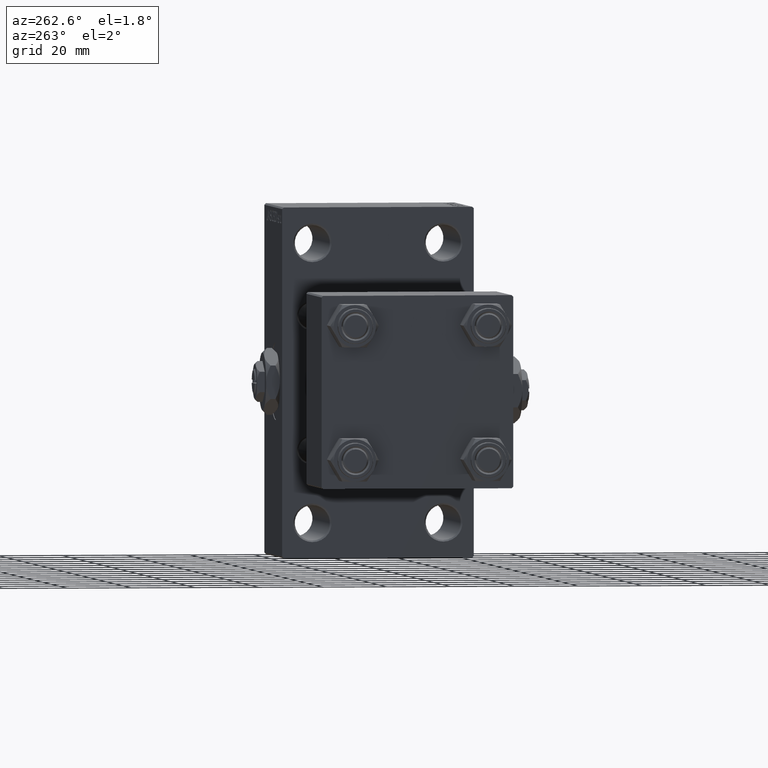
[diagram: clean part render]
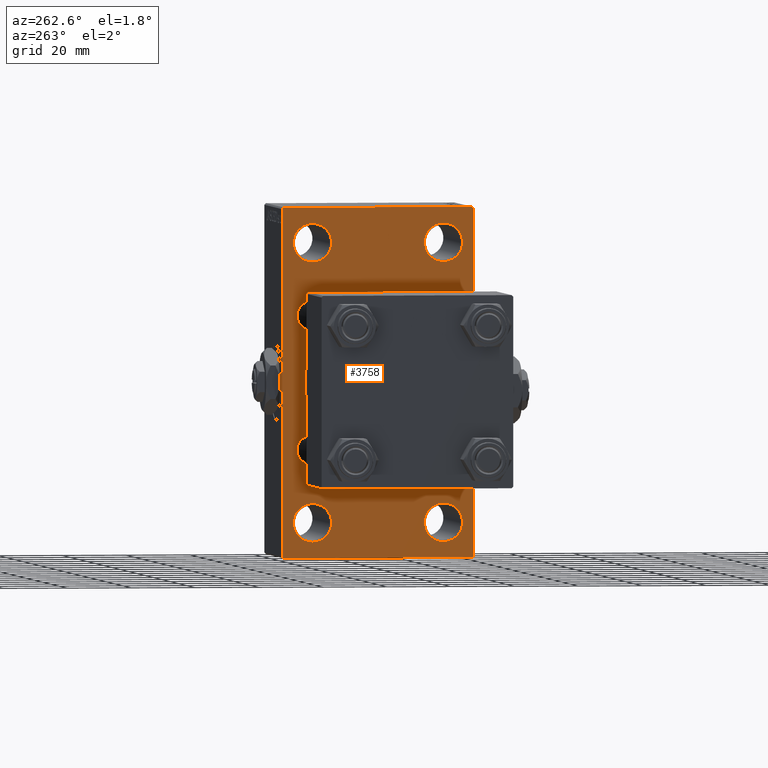
[diagram: same view with one face highlighted and labeled with its STEP entity id]
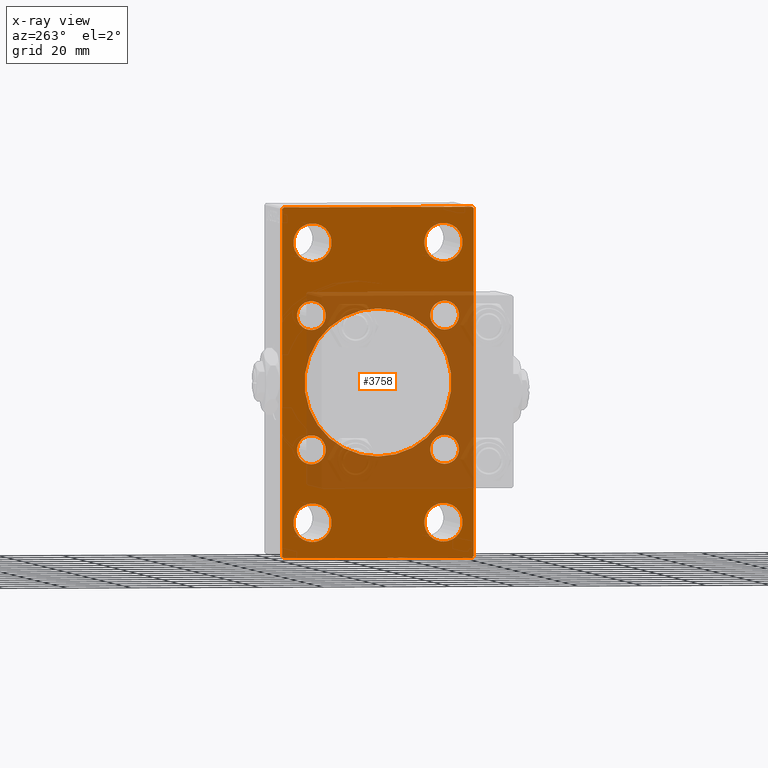
[diagram: x-ray of the same camera — body ghosted, the highlighted face saturated]
A machine part, auxiliary view. The second image highlights one B-rep face of the part: STEP entity #3758.
The next image is the same camera in x-ray: the body ghosted, the highlighted face saturated — about 32% of this face is hidden behind the body in this view.
In plain terms, the highlighted planar face has unit normal (-1, 0, 0).
Its self-contained STEP definition (entity closure, byte-faithful):
#215 = CARTESIAN_POINT ( 'NONE',  ( 95.00000000000000000, -20.50000000000000000, -49.49999999999989342 ) ) ;
#335 = CARTESIAN_POINT ( 'NONE',  ( 95.00000000000000000, 42.00000000000082423, 41.99999999999849365 ) ) ;
#457 = EDGE_LOOP ( 'NONE', ( #11905, #29011 ) ) ;
#688 = CARTESIAN_POINT ( 'NONE',  ( 95.00000000000000000, -20.50000000000000000, -43.50000000000000000 ) ) ;
#700 = VECTOR ( 'NONE', #42082, 1000.000000000000000 ) ;
#788 = CIRCLE ( 'NONE', #26846, 5.999999999999894307 ) ;
#794 = DIRECTION ( 'NONE',  ( 1.000000000000000000, -0.000000000000000000, 0.000000000000000000 ) ) ;
#814 = DIRECTION ( 'NONE',  ( 1.000000000000000000, -0.000000000000000000, 0.000000000000000000 ) ) ;
#875 = CARTESIAN_POINT ( 'NONE',  ( 95.00000000000000000, -2.602085213965210642E-15, 0.000000000000000000 ) ) ;
#1116 = DIRECTION ( 'NONE',  ( 0.000000000000000000, 0.000000000000000000, -1.000000000000000000 ) ) ;
#1276 = CIRCLE ( 'NONE', #11545, 4.500000000000007105 ) ;
#1546 = EDGE_CURVE ( 'NONE', #8600, #10422, #4640, .T. ) ;
#1594 = DIRECTION ( 'NONE',  ( 0.000000000000000000, 0.000000000000000000, 1.000000000000000000 ) ) ;
#1781 = EDGE_CURVE ( 'NONE', #31802, #11388, #19612, .T. ) ;
#2641 = CIRCLE ( 'NONE', #14464, 4.500000000000007105 ) ;
#2984 = ORIENTED_EDGE ( 'NONE', *, *, #29493, .T. ) ;
#3758 = ADVANCED_FACE ( 'NONE', ( #16759, #8852, #23913, #39041, #5113, #35330, #16516, #32357, #14022, #17948 ), #36776, .T. ) ;
#3879 = ORIENTED_EDGE ( 'NONE', *, *, #10965, .T. ) ;
#3888 = DIRECTION ( 'NONE',  ( 0.000000000000000000, 0.000000000000000000, 1.000000000000000000 ) ) ;
#3954 = DIRECTION ( 'NONE',  ( 0.000000000000000000, 0.000000000000000000, 1.000000000000000000 ) ) ;
#4444 = EDGE_CURVE ( 'NONE', #23435, #39509, #788, .T. ) ;
#4494 = DIRECTION ( 'NONE',  ( 0.000000000000000000, 0.000000000000000000, -1.000000000000000000 ) ) ;
#4640 = CIRCLE ( 'NONE', #14904, 23.00000000000000000 ) ;
#4715 = AXIS2_PLACEMENT_3D ( 'NONE', #9343, #6353, #47962 ) ;
#4761 = LINE ( 'NONE', #30490, #15531 ) ;
#4824 = DIRECTION ( 'NONE',  ( 1.000000000000000000, 0.000000000000000000, 0.000000000000000000 ) ) ;
#4983 = DIRECTION ( 'NONE',  ( 0.000000000000000000, 0.000000000000000000, 1.000000000000000000 ) ) ;
#5113 = FACE_BOUND ( 'NONE', #36625, .T. ) ;
#5217 = CIRCLE ( 'NONE', #20991, 23.00000000000000000 ) ;
#5296 = CARTESIAN_POINT ( 'NONE',  ( 95.00000000000000000, -20.84999999999999076, -20.85000000000000497 ) ) ;
#5454 = AXIS2_PLACEMENT_3D ( 'NONE', #23181, #45777, #22691 ) ;
#5468 = DIRECTION ( 'NONE',  ( 1.000000000000000000, -0.000000000000000000, 0.000000000000000000 ) ) ;
#5643 = EDGE_CURVE ( 'NONE', #30629, #31057, #38752, .T. ) ;
#5721 = ORIENTED_EDGE ( 'NONE', *, *, #33546, .T. ) ;
#5760 = CARTESIAN_POINT ( 'NONE',  ( 95.00000000000000000, 20.84999999999999787, 16.34999999999999432 ) ) ;
#5849 = AXIS2_PLACEMENT_3D ( 'NONE', #11143, #10423, #25497 ) ;
#5923 = EDGE_CURVE ( 'NONE', #34494, #33737, #17415, .T. ) ;
#6088 = AXIS2_PLACEMENT_3D ( 'NONE', #25727, #33888, #3954 ) ;
#6322 = ORIENTED_EDGE ( 'NONE', *, *, #30938, .T. ) ;
#6353 = DIRECTION ( 'NONE',  ( -1.000000000000000000, 0.000000000000000000, -0.000000000000000000 ) ) ;
#6832 = EDGE_CURVE ( 'NONE', #11388, #31802, #45933, .T. ) ;
#6892 = EDGE_CURVE ( 'NONE', #22696, #29142, #21379, .T. ) ;
#6956 = AXIS2_PLACEMENT_3D ( 'NONE', #32823, #47947, #40720 ) ;
#7001 = EDGE_LOOP ( 'NONE', ( #16142, #31795 ) ) ;
#7137 = CARTESIAN_POINT ( 'NONE',  ( 95.00000000000000000, -20.50000000000000000, 43.50000000000000000 ) ) ;
#7164 = EDGE_LOOP ( 'NONE', ( #14504, #3879, #41515, #18120, #25220, #23652, #8882, #22784 ) ) ;
#7469 = EDGE_LOOP ( 'NONE', ( #45259, #12807 ) ) ;
#7511 = CARTESIAN_POINT ( 'NONE',  ( 95.00000000000000000, -20.84999999999999076, 25.35000000000001208 ) ) ;
#7616 = DIRECTION ( 'NONE',  ( 1.000000000000000000, -0.000000000000000000, 0.000000000000000000 ) ) ;
#7835 = CARTESIAN_POINT ( 'NONE',  ( 95.00000000000000000, 20.84999999999999787, 20.85000000000000142 ) ) ;
#7957 = CARTESIAN_POINT ( 'NONE',  ( 95.00000000000000000, -2.602085213965210642E-15, 23.00000000000000000 ) ) ;
#8459 = DIRECTION ( 'NONE',  ( 0.000000000000000000, 0.000000000000000000, -1.000000000000000000 ) ) ;
#8600 = VERTEX_POINT ( 'NONE', #7957 ) ;
#8672 = CARTESIAN_POINT ( 'NONE',  ( 95.00000000000000000, 29.99999999999999645, 54.49999999999999289 ) ) ;
#8852 = FACE_BOUND ( 'NONE', #43226, .T. ) ;
#8882 = ORIENTED_EDGE ( 'NONE', *, *, #48315, .T. ) ;
#9164 = CARTESIAN_POINT ( 'NONE',  ( 95.00000000000000000, -30.00000000000000000, 53.99999999999997158 ) ) ;
#9343 = CARTESIAN_POINT ( 'NONE',  ( 95.00000000000000000, 0.000000000000000000, 0.000000000000000000 ) ) ;
#9578 = DIRECTION ( 'NONE',  ( 0.000000000000000000, -1.000000000000000000, -1.156482317317871478E-16 ) ) ;
#9611 = EDGE_LOOP ( 'NONE', ( #23106, #30159 ) ) ;
#9704 = EDGE_CURVE ( 'NONE', #30629, #25193, #26516, .T. ) ;
#10079 = VERTEX_POINT ( 'NONE', #14847 ) ;
#10117 = ORIENTED_EDGE ( 'NONE', *, *, #30815, .T. ) ;
#10379 = EDGE_CURVE ( 'NONE', #39761, #26212, #30109, .T. ) ;
#10422 = VERTEX_POINT ( 'NONE', #17404 ) ;
#10423 = DIRECTION ( 'NONE',  ( 1.000000000000000000, -0.000000000000000000, 0.000000000000000000 ) ) ;
#10608 = LINE ( 'NONE', #25687, #33302 ) ;
#10965 = EDGE_CURVE ( 'NONE', #33835, #25193, #10608, .T. ) ;
#11143 = CARTESIAN_POINT ( 'NONE',  ( 95.00000000000000000, -20.50000000000000000, 43.50000000000000000 ) ) ;
#11388 = VERTEX_POINT ( 'NONE', #34774 ) ;
#11545 = AXIS2_PLACEMENT_3D ( 'NONE', #35937, #32214, #4983 ) ;
#11551 = CARTESIAN_POINT ( 'NONE',  ( 95.00000000000000000, -20.50000000000000000, 49.49999999999989342 ) ) ;
#11905 = ORIENTED_EDGE ( 'NONE', *, *, #1546, .T. ) ;
#11911 = AXIS2_PLACEMENT_3D ( 'NONE', #24001, #5468, #46099 ) ;
#12059 = CARTESIAN_POINT ( 'NONE',  ( 95.00000000000000000, 29.99999999999999645, 54.49999999999999289 ) ) ;
#12807 = ORIENTED_EDGE ( 'NONE', *, *, #5923, .T. ) ;
#13063 = DIRECTION ( 'NONE',  ( 1.000000000000000000, -0.000000000000000000, 0.000000000000000000 ) ) ;
#13324 = ORIENTED_EDGE ( 'NONE', *, *, #4444, .T. ) ;
#13388 = ORIENTED_EDGE ( 'NONE', *, *, #46734, .T. ) ;
#13469 = DIRECTION ( 'NONE',  ( 1.000000000000000000, -0.000000000000000000, 0.000000000000000000 ) ) ;
#13591 = VERTEX_POINT ( 'NONE', #40278 ) ;
#14022 = FACE_BOUND ( 'NONE', #457, .T. ) ;
#14464 = AXIS2_PLACEMENT_3D ( 'NONE', #34701, #794, #23027 ) ;
#14504 = ORIENTED_EDGE ( 'NONE', *, *, #40711, .T. ) ;
#14847 = CARTESIAN_POINT ( 'NONE',  ( 95.00000000000000000, 29.49999999999999645, -54.49999999999999289 ) ) ;
#14904 = AXIS2_PLACEMENT_3D ( 'NONE', #875, #4824, #1116 ) ;
#15531 = VECTOR ( 'NONE', #45628, 1000.000000000000114 ) ;
#16142 = ORIENTED_EDGE ( 'NONE', *, *, #6892, .T. ) ;
#16516 = FACE_BOUND ( 'NONE', #9611, .T. ) ;
#16759 = FACE_BOUND ( 'NONE', #21893, .T. ) ;
#17197 = VECTOR ( 'NONE', #30130, 1000.000000000000000 ) ;
#17311 = CIRCLE ( 'NONE', #5454, 5.999999999999894307 ) ;
#17404 = CARTESIAN_POINT ( 'NONE',  ( 95.00000000000000000, 2.146024240737012665E-16, -23.00000000000000000 ) ) ;
#17415 = CIRCLE ( 'NONE', #37939, 4.500000000000007105 ) ;
#17703 = CARTESIAN_POINT ( 'NONE',  ( 95.00000000000000000, 29.50000000000002132, 54.49999999999999289 ) ) ;
#17924 = AXIS2_PLACEMENT_3D ( 'NONE', #7137, #46018, #18738 ) ;
#17948 = FACE_OUTER_BOUND ( 'NONE', #7164, .T. ) ;
#18120 = ORIENTED_EDGE ( 'NONE', *, *, #5643, .T. ) ;
#18134 = CIRCLE ( 'NONE', #37130, 4.500000000000007105 ) ;
#18508 = EDGE_CURVE ( 'NONE', #36318, #36826, #2641, .T. ) ;
#18738 = DIRECTION ( 'NONE',  ( 0.000000000000000000, 0.000000000000000000, 1.000000000000000000 ) ) ;
#19396 = CIRCLE ( 'NONE', #47144, 4.500000000000007105 ) ;
#19612 = CIRCLE ( 'NONE', #37036, 4.500000000000007105 ) ;
#19629 = VERTEX_POINT ( 'NONE', #30988 ) ;
#20351 = CARTESIAN_POINT ( 'NONE',  ( 95.00000000000000000, 20.84999999999999787, 25.35000000000000853 ) ) ;
#20991 = AXIS2_PLACEMENT_3D ( 'NONE', #23020, #38152, #4494 ) ;
#21053 = EDGE_CURVE ( 'NONE', #40647, #37556, #22411, .T. ) ;
#21152 = DIRECTION ( 'NONE',  ( 1.000000000000000000, -0.000000000000000000, 0.000000000000000000 ) ) ;
#21379 = CIRCLE ( 'NONE', #11911, 5.999999999999894307 ) ;
#21400 = DIRECTION ( 'NONE',  ( 0.000000000000000000, 0.000000000000000000, 1.000000000000000000 ) ) ;
#21815 = CARTESIAN_POINT ( 'NONE',  ( 95.00000000000000000, -29.50000000000000355, -54.50000000000000000 ) ) ;
#21893 = EDGE_LOOP ( 'NONE', ( #43779, #10117 ) ) ;
#22411 = CIRCLE ( 'NONE', #5849, 5.999999999999894307 ) ;
#22655 = CARTESIAN_POINT ( 'NONE',  ( 95.00000000000000000, -20.84999999999999076, -16.34999999999999787 ) ) ;
#22691 = DIRECTION ( 'NONE',  ( 0.000000000000000000, 0.000000000000000000, 1.000000000000000000 ) ) ;
#22696 = VERTEX_POINT ( 'NONE', #43218 ) ;
#22784 = ORIENTED_EDGE ( 'NONE', *, *, #30237, .T. ) ;
#23020 = CARTESIAN_POINT ( 'NONE',  ( 95.00000000000000000, -2.602085213965210642E-15, 0.000000000000000000 ) ) ;
#23027 = DIRECTION ( 'NONE',  ( 0.000000000000000000, 0.000000000000000000, 1.000000000000000000 ) ) ;
#23046 = CARTESIAN_POINT ( 'NONE',  ( 95.00000000000000000, 20.84999999999999787, -20.85000000000000142 ) ) ;
#23106 = ORIENTED_EDGE ( 'NONE', *, *, #1781, .T. ) ;
#23181 = CARTESIAN_POINT ( 'NONE',  ( 95.00000000000000000, 20.50000000000000000, 43.50000000000000000 ) ) ;
#23435 = VERTEX_POINT ( 'NONE', #41732 ) ;
#23652 = ORIENTED_EDGE ( 'NONE', *, *, #31890, .T. ) ;
#23913 = FACE_BOUND ( 'NONE', #7001, .T. ) ;
#24001 = CARTESIAN_POINT ( 'NONE',  ( 95.00000000000000000, 20.50000000000000000, -43.50000000000000000 ) ) ;
#24471 = VERTEX_POINT ( 'NONE', #26635 ) ;
#24653 = CARTESIAN_POINT ( 'NONE',  ( 95.00000000000000000, -20.84999999999999076, -20.85000000000000497 ) ) ;
#24895 = CARTESIAN_POINT ( 'NONE',  ( 95.00000000000000000, 20.50000000000000000, 43.50000000000000000 ) ) ;
#25139 = DIRECTION ( 'NONE',  ( 1.000000000000000000, -0.000000000000000000, 0.000000000000000000 ) ) ;
#25193 = VERTEX_POINT ( 'NONE', #39394 ) ;
#25220 = ORIENTED_EDGE ( 'NONE', *, *, #43078, .F. ) ;
#25497 = DIRECTION ( 'NONE',  ( 0.000000000000000000, 0.000000000000000000, 1.000000000000000000 ) ) ;
#25687 = CARTESIAN_POINT ( 'NONE',  ( 95.00000000000000000, -42.00000000000051159, -41.99999999999905498 ) ) ;
#25727 = CARTESIAN_POINT ( 'NONE',  ( 95.00000000000000000, 20.50000000000000000, -43.50000000000000000 ) ) ;
#26087 = LINE ( 'NONE', #335, #26653 ) ;
#26212 = VERTEX_POINT ( 'NONE', #30958 ) ;
#26516 = LINE ( 'NONE', #31212, #40168 ) ;
#26635 = CARTESIAN_POINT ( 'NONE',  ( 95.00000000000000000, 20.50000000000000000, 49.49999999999989342 ) ) ;
#26653 = VECTOR ( 'NONE', #30529, 1000.000000000000000 ) ;
#26846 = AXIS2_PLACEMENT_3D ( 'NONE', #688, #7616, #48757 ) ;
#26980 = LINE ( 'NONE', #8672, #700 ) ;
#27294 = ORIENTED_EDGE ( 'NONE', *, *, #10379, .T. ) ;
#27617 = CARTESIAN_POINT ( 'NONE',  ( 95.00000000000000000, -42.00000000000008527, 41.99999999999979394 ) ) ;
#28159 = DIRECTION ( 'NONE',  ( 0.000000000000000000, 0.000000000000000000, 1.000000000000000000 ) ) ;
#28311 = CIRCLE ( 'NONE', #6956, 5.999999999999894307 ) ;
#29011 = ORIENTED_EDGE ( 'NONE', *, *, #37962, .T. ) ;
#29017 = CIRCLE ( 'NONE', #35343, 5.999999999999894307 ) ;
#29142 = VERTEX_POINT ( 'NONE', #35012 ) ;
#29493 = EDGE_CURVE ( 'NONE', #36826, #36318, #1276, .T. ) ;
#29856 = ORIENTED_EDGE ( 'NONE', *, *, #18508, .T. ) ;
#30051 = VECTOR ( 'NONE', #35286, 1000.000000000000114 ) ;
#30109 = CIRCLE ( 'NONE', #33268, 4.500000000000007105 ) ;
#30130 = DIRECTION ( 'NONE',  ( 0.000000000000000000, -1.000000000000000000, 1.156482317317871478E-16 ) ) ;
#30159 = ORIENTED_EDGE ( 'NONE', *, *, #6832, .T. ) ;
#30237 = EDGE_CURVE ( 'NONE', #13591, #10079, #4761, .T. ) ;
#30255 = CARTESIAN_POINT ( 'NONE',  ( 95.00000000000000000, -29.49999999999997513, 54.50000000000000000 ) ) ;
#30490 = CARTESIAN_POINT ( 'NONE',  ( 95.00000000000000000, 41.99999999999998579, -41.99999999999998579 ) ) ;
#30529 = DIRECTION ( 'NONE',  ( 0.000000000000000000, 0.7071067811865279218, -0.7071067811865671127 ) ) ;
#30540 = VECTOR ( 'NONE', #9578, 1000.000000000000000 ) ;
#30629 = VERTEX_POINT ( 'NONE', #9164 ) ;
#30815 = EDGE_CURVE ( 'NONE', #37556, #40647, #39295, .T. ) ;
#30938 = EDGE_CURVE ( 'NONE', #24471, #43773, #29017, .T. ) ;
#30958 = CARTESIAN_POINT ( 'NONE',  ( 95.00000000000000000, -20.84999999999999076, -25.35000000000001208 ) ) ;
#30988 = CARTESIAN_POINT ( 'NONE',  ( 95.00000000000000000, 29.99999999999999645, 53.99999999999999289 ) ) ;
#31057 = VERTEX_POINT ( 'NONE', #30255 ) ;
#31212 = CARTESIAN_POINT ( 'NONE',  ( 95.00000000000000000, -30.00000000000000000, 54.50000000000000000 ) ) ;
#31795 = ORIENTED_EDGE ( 'NONE', *, *, #40430, .T. ) ;
#31802 = VERTEX_POINT ( 'NONE', #41438 ) ;
#31890 = EDGE_CURVE ( 'NONE', #41731, #19629, #26087, .T. ) ;
#32163 = CIRCLE ( 'NONE', #6088, 5.999999999999894307 ) ;
#32214 = DIRECTION ( 'NONE',  ( 1.000000000000000000, -0.000000000000000000, 0.000000000000000000 ) ) ;
#32357 = FACE_BOUND ( 'NONE', #41989, .T. ) ;
#32492 = AXIS2_PLACEMENT_3D ( 'NONE', #38392, #34680, #42862 ) ;
#32823 = CARTESIAN_POINT ( 'NONE',  ( 95.00000000000000000, -20.50000000000000000, -43.50000000000000000 ) ) ;
#33268 = AXIS2_PLACEMENT_3D ( 'NONE', #5296, #13469, #1594 ) ;
#33302 = VECTOR ( 'NONE', #37329, 1000.000000000000000 ) ;
#33546 = EDGE_CURVE ( 'NONE', #39509, #23435, #28311, .T. ) ;
#33737 = VERTEX_POINT ( 'NONE', #20351 ) ;
#33835 = VERTEX_POINT ( 'NONE', #21815 ) ;
#33888 = DIRECTION ( 'NONE',  ( 1.000000000000000000, -0.000000000000000000, 0.000000000000000000 ) ) ;
#34494 = VERTEX_POINT ( 'NONE', #5760 ) ;
#34680 = DIRECTION ( 'NONE',  ( 1.000000000000000000, -0.000000000000000000, 0.000000000000000000 ) ) ;
#34701 = CARTESIAN_POINT ( 'NONE',  ( 95.00000000000000000, -20.84999999999999076, 20.85000000000000497 ) ) ;
#34774 = CARTESIAN_POINT ( 'NONE',  ( 95.00000000000000000, 20.84999999999999787, -25.35000000000000853 ) ) ;
#34812 = CARTESIAN_POINT ( 'NONE',  ( 95.00000000000000000, -20.50000000000000000, 37.50000000000009948 ) ) ;
#34921 = EDGE_CURVE ( 'NONE', #43773, #24471, #17311, .T. ) ;
#35012 = CARTESIAN_POINT ( 'NONE',  ( 95.00000000000000000, 20.50000000000000000, -49.49999999999989342 ) ) ;
#35286 = DIRECTION ( 'NONE',  ( -0.000000000000000000, 0.7071067811865451302, 0.7071067811865500152 ) ) ;
#35330 = FACE_BOUND ( 'NONE', #7469, .T. ) ;
#35343 = AXIS2_PLACEMENT_3D ( 'NONE', #24895, #25139, #40739 ) ;
#35937 = CARTESIAN_POINT ( 'NONE',  ( 95.00000000000000000, -20.84999999999999076, 20.85000000000000497 ) ) ;
#36318 = VERTEX_POINT ( 'NONE', #42164 ) ;
#36625 = EDGE_LOOP ( 'NONE', ( #2984, #29856 ) ) ;
#36776 = PLANE ( 'NONE',  #4715 ) ;
#36826 = VERTEX_POINT ( 'NONE', #7511 ) ;
#37036 = AXIS2_PLACEMENT_3D ( 'NONE', #23046, #814, #38432 ) ;
#37130 = AXIS2_PLACEMENT_3D ( 'NONE', #24653, #21152, #21400 ) ;
#37329 = DIRECTION ( 'NONE',  ( 0.000000000000000000, -0.7071067811865352493, 0.7071067811865597852 ) ) ;
#37556 = VERTEX_POINT ( 'NONE', #34812 ) ;
#37780 = DIRECTION ( 'NONE',  ( 1.000000000000000000, -0.000000000000000000, 0.000000000000000000 ) ) ;
#37801 = LINE ( 'NONE', #12059, #17197 ) ;
#37939 = AXIS2_PLACEMENT_3D ( 'NONE', #43526, #13063, #28159 ) ;
#37962 = EDGE_CURVE ( 'NONE', #10422, #8600, #5217, .T. ) ;
#38152 = DIRECTION ( 'NONE',  ( 1.000000000000000000, 0.000000000000000000, 0.000000000000000000 ) ) ;
#38392 = CARTESIAN_POINT ( 'NONE',  ( 95.00000000000000000, 20.84999999999999787, -20.85000000000000142 ) ) ;
#38432 = DIRECTION ( 'NONE',  ( 0.000000000000000000, 0.000000000000000000, 1.000000000000000000 ) ) ;
#38752 = LINE ( 'NONE', #27617, #30051 ) ;
#38764 = EDGE_CURVE ( 'NONE', #33737, #34494, #19396, .T. ) ;
#39041 = FACE_BOUND ( 'NONE', #45755, .T. ) ;
#39295 = CIRCLE ( 'NONE', #17924, 5.999999999999894307 ) ;
#39394 = CARTESIAN_POINT ( 'NONE',  ( 95.00000000000000000, -30.00000000000000000, -53.99999999999998579 ) ) ;
#39509 = VERTEX_POINT ( 'NONE', #215 ) ;
#39761 = VERTEX_POINT ( 'NONE', #22655 ) ;
#40168 = VECTOR ( 'NONE', #8459, 1000.000000000000000 ) ;
#40278 = CARTESIAN_POINT ( 'NONE',  ( 95.00000000000000000, 29.99999999999999645, -53.99999999999999289 ) ) ;
#40430 = EDGE_CURVE ( 'NONE', #29142, #22696, #32163, .T. ) ;
#40647 = VERTEX_POINT ( 'NONE', #11551 ) ;
#40711 = EDGE_CURVE ( 'NONE', #10079, #33835, #46975, .T. ) ;
#40720 = DIRECTION ( 'NONE',  ( 0.000000000000000000, 0.000000000000000000, 1.000000000000000000 ) ) ;
#40739 = DIRECTION ( 'NONE',  ( 0.000000000000000000, 0.000000000000000000, 1.000000000000000000 ) ) ;
#41438 = CARTESIAN_POINT ( 'NONE',  ( 95.00000000000000000, 20.84999999999999787, -16.34999999999999432 ) ) ;
#41515 = ORIENTED_EDGE ( 'NONE', *, *, #9704, .F. ) ;
#41731 = VERTEX_POINT ( 'NONE', #17703 ) ;
#41732 = CARTESIAN_POINT ( 'NONE',  ( 95.00000000000000000, -20.50000000000000000, -37.50000000000009948 ) ) ;
#41989 = EDGE_LOOP ( 'NONE', ( #27294, #13388 ) ) ;
#42082 = DIRECTION ( 'NONE',  ( 0.000000000000000000, 0.000000000000000000, -1.000000000000000000 ) ) ;
#42164 = CARTESIAN_POINT ( 'NONE',  ( 95.00000000000000000, -20.84999999999999076, 16.34999999999999787 ) ) ;
#42588 = CARTESIAN_POINT ( 'NONE',  ( 95.00000000000000000, 20.50000000000000000, 37.50000000000009948 ) ) ;
#42862 = DIRECTION ( 'NONE',  ( 0.000000000000000000, 0.000000000000000000, 1.000000000000000000 ) ) ;
#43078 = EDGE_CURVE ( 'NONE', #41731, #31057, #37801, .T. ) ;
#43218 = CARTESIAN_POINT ( 'NONE',  ( 95.00000000000000000, 20.50000000000000000, -37.50000000000009948 ) ) ;
#43226 = EDGE_LOOP ( 'NONE', ( #13324, #5721 ) ) ;
#43526 = CARTESIAN_POINT ( 'NONE',  ( 95.00000000000000000, 20.84999999999999787, 20.85000000000000142 ) ) ;
#43773 = VERTEX_POINT ( 'NONE', #42588 ) ;
#43779 = ORIENTED_EDGE ( 'NONE', *, *, #21053, .T. ) ;
#44002 = ORIENTED_EDGE ( 'NONE', *, *, #34921, .T. ) ;
#44222 = CARTESIAN_POINT ( 'NONE',  ( 95.00000000000000000, 29.99999999999999645, -54.49999999999999289 ) ) ;
#45259 = ORIENTED_EDGE ( 'NONE', *, *, #38764, .T. ) ;
#45628 = DIRECTION ( 'NONE',  ( -0.000000000000000000, -0.7071067811865474617, -0.7071067811865474617 ) ) ;
#45755 = EDGE_LOOP ( 'NONE', ( #6322, #44002 ) ) ;
#45777 = DIRECTION ( 'NONE',  ( 1.000000000000000000, -0.000000000000000000, 0.000000000000000000 ) ) ;
#45933 = CIRCLE ( 'NONE', #32492, 4.500000000000007105 ) ;
#46018 = DIRECTION ( 'NONE',  ( 1.000000000000000000, -0.000000000000000000, 0.000000000000000000 ) ) ;
#46099 = DIRECTION ( 'NONE',  ( 0.000000000000000000, 0.000000000000000000, 1.000000000000000000 ) ) ;
#46734 = EDGE_CURVE ( 'NONE', #26212, #39761, #18134, .T. ) ;
#46975 = LINE ( 'NONE', #44222, #30540 ) ;
#47144 = AXIS2_PLACEMENT_3D ( 'NONE', #7835, #37780, #3888 ) ;
#47947 = DIRECTION ( 'NONE',  ( 1.000000000000000000, -0.000000000000000000, 0.000000000000000000 ) ) ;
#47962 = DIRECTION ( 'NONE',  ( -0.000000000000000000, 0.000000000000000000, 1.000000000000000000 ) ) ;
#48315 = EDGE_CURVE ( 'NONE', #19629, #13591, #26980, .T. ) ;
#48757 = DIRECTION ( 'NONE',  ( 0.000000000000000000, 0.000000000000000000, 1.000000000000000000 ) ) ;